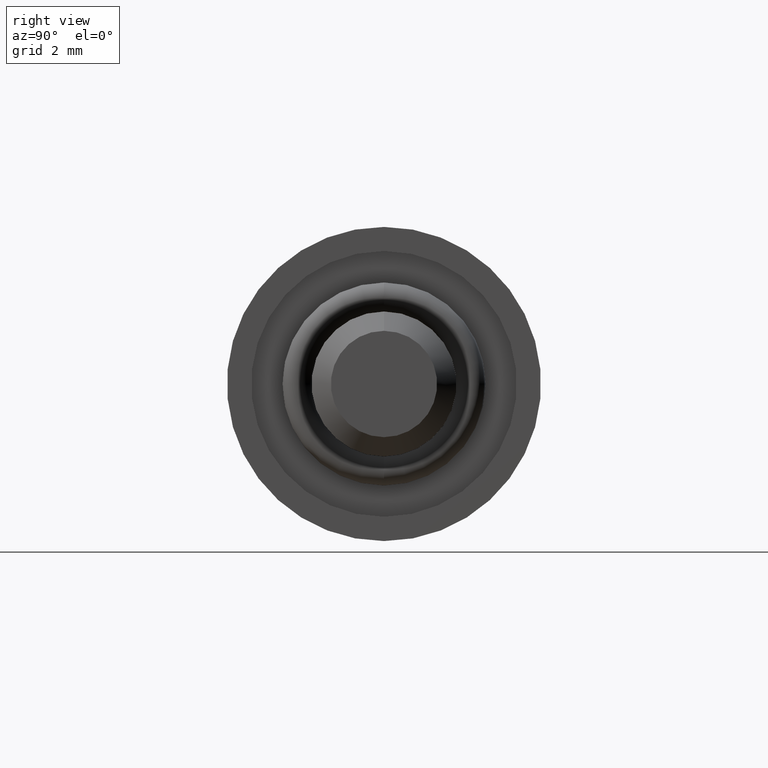
[diagram: clean part render]
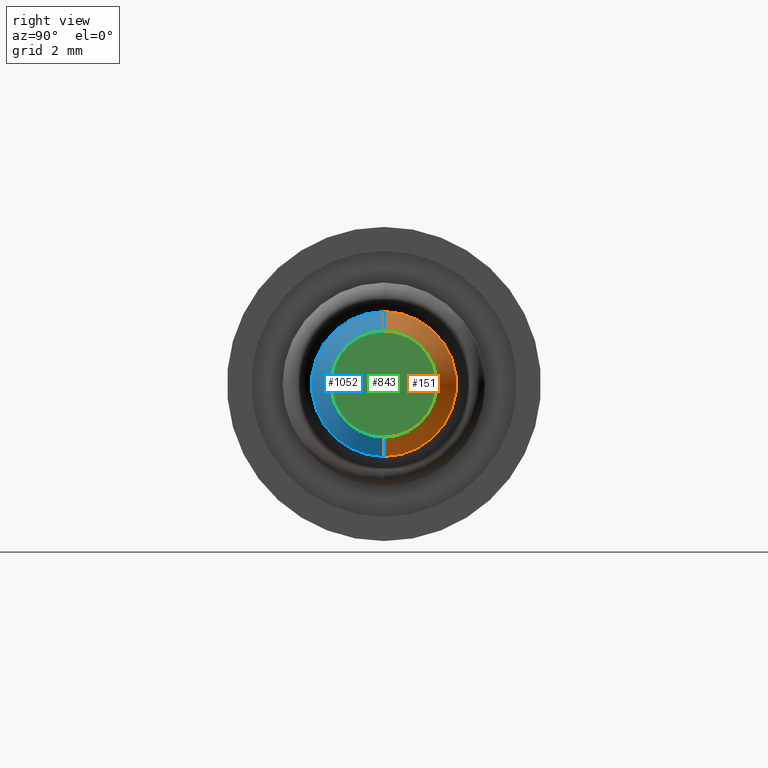
[diagram: same view with three faces highlighted in distinct colors, each labeled with its STEP entity id]
A machine part, right view with three faces highlighted in distinct colors.
Their STEP definitions:

[orange] entity #151 — the highlighted conical surface has half-angle 45 deg.
#57 = DIRECTION ( 'NONE',  ( 0.0000000000000000000, 0.0000000000000000000, 1.000000000000000000 ) ) ;
#61 = DIRECTION ( 'NONE',  ( 0.0000000000000000000, 0.0000000000000000000, -1.000000000000000000 ) ) ;
#88 = DIRECTION ( 'NONE',  ( -0.7071067811865483500, 8.659560562354920500E-017, -0.7071067811865465700 ) ) ;
#97 = CIRCLE ( 'NONE', #880, 1.500000000000000200 ) ;
#99 = DIRECTION ( 'NONE',  ( -1.000000000000000000, 0.0000000000000000000, 0.0000000000000000000 ) ) ;
#105 = ORIENTED_EDGE ( 'NONE', *, *, #1203, .F. ) ;
#126 = CONICAL_SURFACE ( 'NONE', #317, 1.100000000000002100, 0.7853981633974469500 ) ;
#137 = LINE ( 'NONE', #1053, #876 ) ;
#151 = ADVANCED_FACE ( 'NONE', ( #1163 ), #126, .T. ) ;
#155 = DIRECTION ( 'NONE',  ( 1.000000000000000000, 0.0000000000000000000, 0.0000000000000000000 ) ) ;
#162 = ORIENTED_EDGE ( 'NONE', *, *, #649, .T. ) ;
#206 = VECTOR ( 'NONE', #88, 1000.000000000000100 ) ;
#293 = ORIENTED_EDGE ( 'NONE', *, *, #962, .F. ) ;
#297 = DIRECTION ( 'NONE',  ( 0.0000000000000000000, 0.0000000000000000000, -1.000000000000000000 ) ) ;
#301 = CIRCLE ( 'NONE', #756, 1.100000000000002100 ) ;
#307 = EDGE_LOOP ( 'NONE', ( #105, #162, #549, #293 ) ) ;
#315 = DIRECTION ( 'NONE',  ( -0.7071067811865483500, 0.0000000000000000000, 0.7071067811865465700 ) ) ;
#317 = AXIS2_PLACEMENT_3D ( 'NONE', #955, #99, #57 ) ;
#343 = CARTESIAN_POINT ( 'NONE',  ( 10.00000000000000000, 0.0000000000000000000, 0.0000000000000000000 ) ) ;
#485 = CARTESIAN_POINT ( 'NONE',  ( 9.600000000000001400, 1.836970198721029900E-016, -1.500000000000000400 ) ) ;
#495 = CARTESIAN_POINT ( 'NONE',  ( 10.00000000000000000, 0.0000000000000000000, 1.100000000000002100 ) ) ;
#549 = ORIENTED_EDGE ( 'NONE', *, *, #1212, .F. ) ;
#621 = CARTESIAN_POINT ( 'NONE',  ( 9.600000000000001400, 0.0000000000000000000, 1.500000000000000400 ) ) ;
#649 = EDGE_CURVE ( 'NONE', #775, #803, #975, .T. ) ;
#682 = DIRECTION ( 'NONE',  ( -1.000000000000000000, 0.0000000000000000000, 0.0000000000000000000 ) ) ;
#756 = AXIS2_PLACEMENT_3D ( 'NONE', #343, #155, #61 ) ;
#775 = VERTEX_POINT ( 'NONE', #1024 ) ;
#803 = VERTEX_POINT ( 'NONE', #485 ) ;
#872 = VERTEX_POINT ( 'NONE', #495 ) ;
#876 = VECTOR ( 'NONE', #315, 1000.000000000000100 ) ;
#880 = AXIS2_PLACEMENT_3D ( 'NONE', #968, #682, #297 ) ;
#955 = CARTESIAN_POINT ( 'NONE',  ( 10.00000000000000000, 0.0000000000000000000, 0.0000000000000000000 ) ) ;
#962 = EDGE_CURVE ( 'NONE', #872, #1025, #137, .T. ) ;
#968 = CARTESIAN_POINT ( 'NONE',  ( 9.600000000000001400, 0.0000000000000000000, 0.0000000000000000000 ) ) ;
#975 = LINE ( 'NONE', #990, #206 ) ;
#990 = CARTESIAN_POINT ( 'NONE',  ( 10.00000000000000000, 1.347111479062090700E-016, -1.100000000000002100 ) ) ;
#1024 = CARTESIAN_POINT ( 'NONE',  ( 10.00000000000000000, 1.592040838891560300E-016, -1.100000000000002100 ) ) ;
#1025 = VERTEX_POINT ( 'NONE', #621 ) ;
#1053 = CARTESIAN_POINT ( 'NONE',  ( 10.00000000000000000, 0.0000000000000000000, 1.100000000000002100 ) ) ;
#1163 = FACE_OUTER_BOUND ( 'NONE', #307, .T. ) ;
#1203 = EDGE_CURVE ( 'NONE', #775, #872, #301, .T. ) ;
#1212 = EDGE_CURVE ( 'NONE', #1025, #803, #97, .T. ) ;

[blue] entity #1052 — the highlighted conical surface has half-angle 45 deg.
#40 = CIRCLE ( 'NONE', #673, 1.100000000000002100 ) ;
#41 = EDGE_CURVE ( 'NONE', #803, #1025, #533, .T. ) ;
#88 = DIRECTION ( 'NONE',  ( -0.7071067811865483500, 8.659560562354920500E-017, -0.7071067811865465700 ) ) ;
#122 = EDGE_LOOP ( 'NONE', ( #341, #536, #652, #932 ) ) ;
#136 = DIRECTION ( 'NONE',  ( 1.000000000000000000, 0.0000000000000000000, 0.0000000000000000000 ) ) ;
#137 = LINE ( 'NONE', #1053, #876 ) ;
#206 = VECTOR ( 'NONE', #88, 1000.000000000000100 ) ;
#315 = DIRECTION ( 'NONE',  ( -0.7071067811865483500, 0.0000000000000000000, 0.7071067811865465700 ) ) ;
#324 = DIRECTION ( 'NONE',  ( 0.0000000000000000000, 0.0000000000000000000, 1.000000000000000000 ) ) ;
#341 = ORIENTED_EDGE ( 'NONE', *, *, #649, .F. ) ;
#485 = CARTESIAN_POINT ( 'NONE',  ( 9.600000000000001400, 1.836970198721029900E-016, -1.500000000000000400 ) ) ;
#494 = DIRECTION ( 'NONE',  ( 0.0000000000000000000, 0.0000000000000000000, -1.000000000000000000 ) ) ;
#495 = CARTESIAN_POINT ( 'NONE',  ( 10.00000000000000000, 0.0000000000000000000, 1.100000000000002100 ) ) ;
#531 = FACE_OUTER_BOUND ( 'NONE', #122, .T. ) ;
#533 = CIRCLE ( 'NONE', #1111, 1.500000000000000200 ) ;
#536 = ORIENTED_EDGE ( 'NONE', *, *, #828, .F. ) ;
#621 = CARTESIAN_POINT ( 'NONE',  ( 9.600000000000001400, 0.0000000000000000000, 1.500000000000000400 ) ) ;
#649 = EDGE_CURVE ( 'NONE', #775, #803, #975, .T. ) ;
#652 = ORIENTED_EDGE ( 'NONE', *, *, #962, .T. ) ;
#673 = AXIS2_PLACEMENT_3D ( 'NONE', #953, #136, #494 ) ;
#708 = DIRECTION ( 'NONE',  ( 0.0000000000000000000, 0.0000000000000000000, -1.000000000000000000 ) ) ;
#765 = CARTESIAN_POINT ( 'NONE',  ( 10.00000000000000000, 0.0000000000000000000, 0.0000000000000000000 ) ) ;
#775 = VERTEX_POINT ( 'NONE', #1024 ) ;
#803 = VERTEX_POINT ( 'NONE', #485 ) ;
#828 = EDGE_CURVE ( 'NONE', #872, #775, #40, .T. ) ;
#872 = VERTEX_POINT ( 'NONE', #495 ) ;
#876 = VECTOR ( 'NONE', #315, 1000.000000000000100 ) ;
#932 = ORIENTED_EDGE ( 'NONE', *, *, #41, .F. ) ;
#951 = DIRECTION ( 'NONE',  ( -1.000000000000000000, 0.0000000000000000000, 0.0000000000000000000 ) ) ;
#953 = CARTESIAN_POINT ( 'NONE',  ( 10.00000000000000000, 0.0000000000000000000, 0.0000000000000000000 ) ) ;
#962 = EDGE_CURVE ( 'NONE', #872, #1025, #137, .T. ) ;
#975 = LINE ( 'NONE', #990, #206 ) ;
#990 = CARTESIAN_POINT ( 'NONE',  ( 10.00000000000000000, 1.347111479062090700E-016, -1.100000000000002100 ) ) ;
#1024 = CARTESIAN_POINT ( 'NONE',  ( 10.00000000000000000, 1.592040838891560300E-016, -1.100000000000002100 ) ) ;
#1025 = VERTEX_POINT ( 'NONE', #621 ) ;
#1049 = CARTESIAN_POINT ( 'NONE',  ( 9.600000000000001400, 0.0000000000000000000, 0.0000000000000000000 ) ) ;
#1052 = ADVANCED_FACE ( 'NONE', ( #531 ), #1220, .T. ) ;
#1053 = CARTESIAN_POINT ( 'NONE',  ( 10.00000000000000000, 0.0000000000000000000, 1.100000000000002100 ) ) ;
#1111 = AXIS2_PLACEMENT_3D ( 'NONE', #1049, #1162, #708 ) ;
#1148 = AXIS2_PLACEMENT_3D ( 'NONE', #765, #951, #324 ) ;
#1162 = DIRECTION ( 'NONE',  ( -1.000000000000000000, 0.0000000000000000000, 0.0000000000000000000 ) ) ;
#1220 = CONICAL_SURFACE ( 'NONE', #1148, 1.100000000000002100, 0.7853981633974469500 ) ;

[green] entity #843 — the highlighted planar face has unit normal (1, 0, 0).
#40 = CIRCLE ( 'NONE', #673, 1.100000000000002100 ) ;
#54 = CARTESIAN_POINT ( 'NONE',  ( 10.00000000000000000, 0.0000000000000000000, 0.0000000000000000000 ) ) ;
#61 = DIRECTION ( 'NONE',  ( 0.0000000000000000000, 0.0000000000000000000, -1.000000000000000000 ) ) ;
#78 = AXIS2_PLACEMENT_3D ( 'NONE', #54, #83, #221 ) ;
#83 = DIRECTION ( 'NONE',  ( 1.000000000000000000, 0.0000000000000000000, 0.0000000000000000000 ) ) ;
#136 = DIRECTION ( 'NONE',  ( 1.000000000000000000, 0.0000000000000000000, 0.0000000000000000000 ) ) ;
#155 = DIRECTION ( 'NONE',  ( 1.000000000000000000, 0.0000000000000000000, 0.0000000000000000000 ) ) ;
#221 = DIRECTION ( 'NONE',  ( 0.0000000000000000000, 0.0000000000000000000, -1.000000000000000000 ) ) ;
#301 = CIRCLE ( 'NONE', #756, 1.100000000000002100 ) ;
#343 = CARTESIAN_POINT ( 'NONE',  ( 10.00000000000000000, 0.0000000000000000000, 0.0000000000000000000 ) ) ;
#492 = FACE_OUTER_BOUND ( 'NONE', #520, .T. ) ;
#494 = DIRECTION ( 'NONE',  ( 0.0000000000000000000, 0.0000000000000000000, -1.000000000000000000 ) ) ;
#495 = CARTESIAN_POINT ( 'NONE',  ( 10.00000000000000000, 0.0000000000000000000, 1.100000000000002100 ) ) ;
#515 = PLANE ( 'NONE',  #78 ) ;
#520 = EDGE_LOOP ( 'NONE', ( #774, #848 ) ) ;
#673 = AXIS2_PLACEMENT_3D ( 'NONE', #953, #136, #494 ) ;
#756 = AXIS2_PLACEMENT_3D ( 'NONE', #343, #155, #61 ) ;
#774 = ORIENTED_EDGE ( 'NONE', *, *, #828, .T. ) ;
#775 = VERTEX_POINT ( 'NONE', #1024 ) ;
#828 = EDGE_CURVE ( 'NONE', #872, #775, #40, .T. ) ;
#843 = ADVANCED_FACE ( 'NONE', ( #492 ), #515, .T. ) ;
#848 = ORIENTED_EDGE ( 'NONE', *, *, #1203, .T. ) ;
#872 = VERTEX_POINT ( 'NONE', #495 ) ;
#953 = CARTESIAN_POINT ( 'NONE',  ( 10.00000000000000000, 0.0000000000000000000, 0.0000000000000000000 ) ) ;
#1024 = CARTESIAN_POINT ( 'NONE',  ( 10.00000000000000000, 1.592040838891560300E-016, -1.100000000000002100 ) ) ;
#1203 = EDGE_CURVE ( 'NONE', #775, #872, #301, .T. ) ;